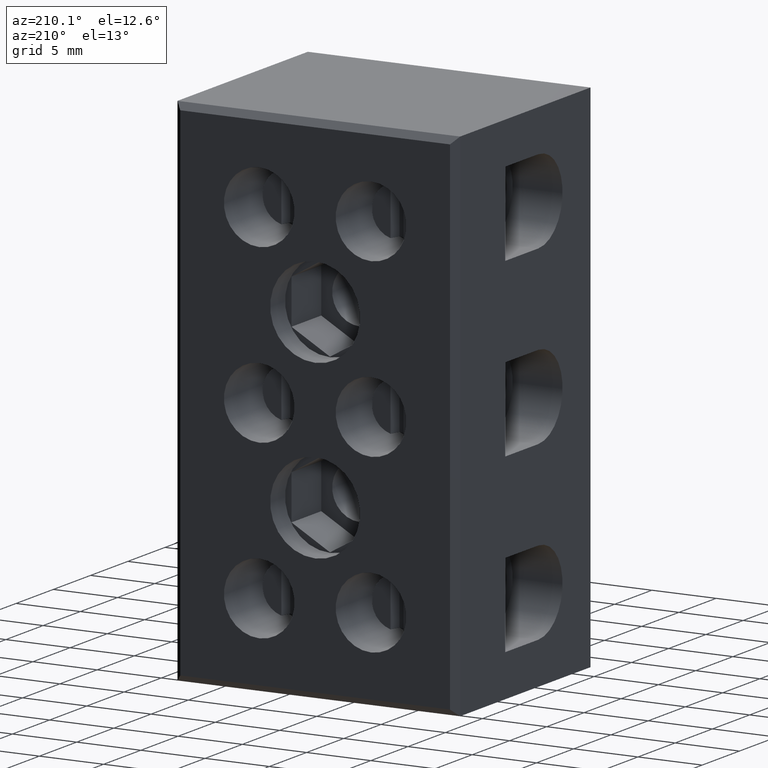
[diagram: clean part render]
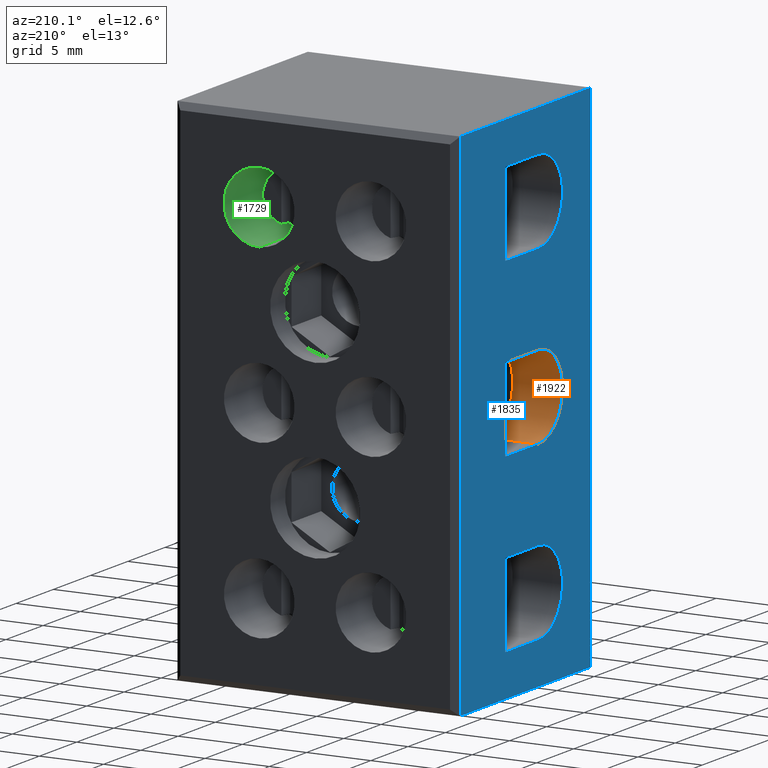
[diagram: same view with three faces highlighted in distinct colors, each labeled with its STEP entity id]
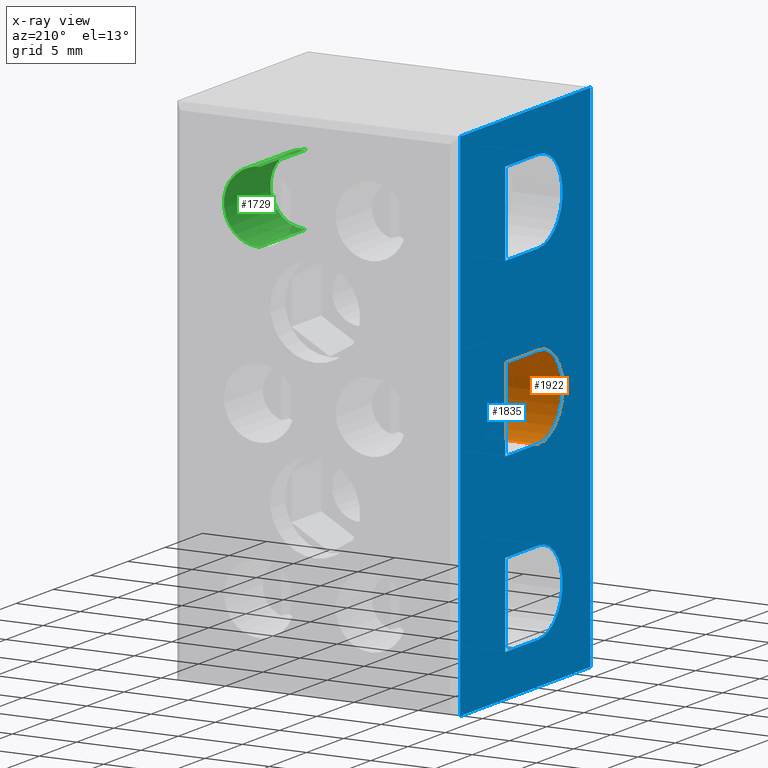
[diagram: x-ray of the same camera — body ghosted, the three highlighted faces saturated]
A machine part, auxiliary view with three faces highlighted in distinct colors.
The next image is the same camera in x-ray (body ghosted, the three faces saturated) — at least one of them is partly hidden behind the body in this view.
Their STEP definitions:

[orange] entity #1922 — the highlighted cylindrical surface (partial cylindrical patch) has radius 3.25 mm, axis along (1, 0, 0).
#279 = EDGE_LOOP ( 'NONE', ( #4390, #4465, #4494, #4484 ) ) ;
#424 = VERTEX_POINT ( 'NONE', #4583 ) ;
#452 = VERTEX_POINT ( 'NONE', #4600 ) ;
#487 = VERTEX_POINT ( 'NONE', #4673 ) ;
#495 = VERTEX_POINT ( 'NONE', #4621 ) ;
#1067 = EDGE_CURVE ( 'NONE', #487, #452, #1646, .T. ) ;
#1077 = EDGE_CURVE ( 'NONE', #424, #452, #3198, .T. ) ;
#1118 = EDGE_CURVE ( 'NONE', #495, #487, #3153, .T. ) ;
#1128 = EDGE_CURVE ( 'NONE', #495, #424, #1970, .T. ) ;
#1642 = CARTESIAN_POINT ( 'NONE',  ( -41.60000000000000900, 7.500000000000000000, -16.75000000000000000 ) ) ;
#1646 = LINE ( 'NONE', #1642, #3090 ) ;
#1684 = DIRECTION ( 'NONE',  ( 1.000000000000000000, 0.0000000000000000000, -0.0000000000000000000 ) ) ;
#1732 = CARTESIAN_POINT ( 'NONE',  ( 4.400000000000278400, 7.500000000000000000, -20.00000000000000000 ) ) ;
#1780 = DIRECTION ( 'NONE',  ( -1.000000000000000000, -0.0000000000000000000, -0.0000000000000000000 ) ) ;
#1789 = DIRECTION ( 'NONE',  ( 0.0000000000000000000, 0.0000000000000000000, -1.000000000000000000 ) ) ;
#1860 = CARTESIAN_POINT ( 'NONE',  ( 0.0000000000000000000, 7.500000000000000000, -20.00000000000000000 ) ) ;
#1861 = DIRECTION ( 'NONE',  ( -1.000000000000000000, -0.0000000000000000000, -0.0000000000000000000 ) ) ;
#1862 = DIRECTION ( 'NONE',  ( 0.0000000000000000000, 0.0000000000000000000, -1.000000000000000000 ) ) ;
#1922 = ADVANCED_FACE ( 'NONE', ( #6138 ), #6110, .F. ) ;
#1956 = DIRECTION ( 'NONE',  ( 1.000000000000000000, 0.0000000000000000000, 0.0000000000000000000 ) ) ;
#1970 = LINE ( 'NONE', #1984, #3220 ) ;
#1984 = CARTESIAN_POINT ( 'NONE',  ( -41.60000000000000900, 7.500000000000000000, -23.25000000000000000 ) ) ;
#3090 = VECTOR ( 'NONE', #1684, 1000.000000000000000 ) ;
#3153 = CIRCLE ( 'NONE', #3179, 3.249999999999999600 ) ;
#3179 = AXIS2_PLACEMENT_3D ( 'NONE', #1860, #1861, #1862 ) ;
#3188 = AXIS2_PLACEMENT_3D ( 'NONE', #1732, #1780, #1789 ) ;
#3198 = CIRCLE ( 'NONE', #3188, 3.249999999999999600 ) ;
#3220 = VECTOR ( 'NONE', #1956, 1000.000000000000000 ) ;
#4390 = ORIENTED_EDGE ( 'NONE', *, *, #1128, .F. ) ;
#4465 = ORIENTED_EDGE ( 'NONE', *, *, #1118, .T. ) ;
#4484 = ORIENTED_EDGE ( 'NONE', *, *, #1077, .F. ) ;
#4494 = ORIENTED_EDGE ( 'NONE', *, *, #1067, .T. ) ;
#4583 = CARTESIAN_POINT ( 'NONE',  ( 4.400000000000278400, 7.500000000000000000, -23.25000000000000000 ) ) ;
#4600 = CARTESIAN_POINT ( 'NONE',  ( 4.400000000000278400, 7.500000000000000000, -16.75000000000000000 ) ) ;
#4621 = CARTESIAN_POINT ( 'NONE',  ( 0.0000000000000000000, 7.500000000000000000, -23.25000000000000000 ) ) ;
#4673 = CARTESIAN_POINT ( 'NONE',  ( 0.0000000000000000000, 7.500000000000000000, -16.75000000000000000 ) ) ;
#6110 = CYLINDRICAL_SURFACE ( 'NONE', #7030, 3.249999999999999600 ) ;
#6123 = DIRECTION ( 'NONE',  ( 0.0000000000000000000, 0.0000000000000000000, -1.000000000000000000 ) ) ;
#6138 = FACE_OUTER_BOUND ( 'NONE', #279, .T. ) ;
#6139 = CARTESIAN_POINT ( 'NONE',  ( -41.60000000000000900, 7.500000000000000000, -20.00000000000000000 ) ) ;
#6140 = DIRECTION ( 'NONE',  ( 1.000000000000000000, 0.0000000000000000000, 0.0000000000000000000 ) ) ;
#7030 = AXIS2_PLACEMENT_3D ( 'NONE', #6139, #6140, #6123 ) ;

[blue] entity #1835 — the highlighted planar face has unit normal (1, -0, 0).
#277 = EDGE_LOOP ( 'NONE', ( #4497, #4443, #4532, #4493 ) ) ;
#312 = EDGE_LOOP ( 'NONE', ( #4496, #4516, #4538, #4522 ) ) ;
#348 = EDGE_LOOP ( 'NONE', ( #4483, #4520, #4513, #4515 ) ) ;
#349 = EDGE_LOOP ( 'NONE', ( #4539, #4474, #4551, #4471 ) ) ;
#468 = VERTEX_POINT ( 'NONE', #4654 ) ;
#469 = VERTEX_POINT ( 'NONE', #4635 ) ;
#474 = VERTEX_POINT ( 'NONE', #4667 ) ;
#475 = VERTEX_POINT ( 'NONE', #4616 ) ;
#487 = VERTEX_POINT ( 'NONE', #4673 ) ;
#493 = VERTEX_POINT ( 'NONE', #4663 ) ;
#495 = VERTEX_POINT ( 'NONE', #4621 ) ;
#502 = VERTEX_POINT ( 'NONE', #4637 ) ;
#503 = VERTEX_POINT ( 'NONE', #4627 ) ;
#504 = VERTEX_POINT ( 'NONE', #4628 ) ;
#505 = VERTEX_POINT ( 'NONE', #4651 ) ;
#511 = VERTEX_POINT ( 'NONE', #4630 ) ;
#512 = VERTEX_POINT ( 'NONE', #4652 ) ;
#515 = VERTEX_POINT ( 'NONE', #4636 ) ;
#517 = VERTEX_POINT ( 'NONE', #4632 ) ;
#520 = VERTEX_POINT ( 'NONE', #4658 ) ;
#1051 = EDGE_CURVE ( 'NONE', #475, #468, #3100, .T. ) ;
#1059 = EDGE_CURVE ( 'NONE', #474, #475, #1543, .T. ) ;
#1062 = EDGE_CURVE ( 'NONE', #520, #515, #1532, .T. ) ;
#1064 = EDGE_CURVE ( 'NONE', #515, #503, #1695, .T. ) ;
#1065 = EDGE_CURVE ( 'NONE', #468, #469, #1630, .T. ) ;
#1066 = EDGE_CURVE ( 'NONE', #469, #474, #1697, .T. ) ;
#1072 = EDGE_CURVE ( 'NONE', #512, #505, #1686, .T. ) ;
#1091 = EDGE_CURVE ( 'NONE', #502, #517, #1777, .T. ) ;
#1113 = EDGE_CURVE ( 'NONE', #502, #504, #1887, .T. ) ;
#1118 = EDGE_CURVE ( 'NONE', #495, #487, #3153, .T. ) ;
#1131 = EDGE_CURVE ( 'NONE', #493, #517, #1999, .T. ) ;
#1134 = EDGE_CURVE ( 'NONE', #504, #493, #1991, .T. ) ;
#1144 = EDGE_CURVE ( 'NONE', #503, #511, #2039, .T. ) ;
#1149 = EDGE_CURVE ( 'NONE', #511, #520, #2529, .T. ) ;
#1150 = EDGE_CURVE ( 'NONE', #487, #512, #2032, .T. ) ;
#1151 = EDGE_CURVE ( 'NONE', #505, #495, #2064, .T. ) ;
#1525 = CARTESIAN_POINT ( 'NONE',  ( 0.0000000000000000000, 18.50000000000000000, -36.75000000000000000 ) ) ;
#1532 = LINE ( 'NONE', #1694, #3121 ) ;
#1543 = LINE ( 'NONE', #1525, #3087 ) ;
#1552 = CARTESIAN_POINT ( 'NONE',  ( 0.0000000000000000000, 7.500000000000000000, -33.50000000000000000 ) ) ;
#1565 = DIRECTION ( 'NONE',  ( -1.000000000000000000, -0.0000000000000000000, -0.0000000000000000000 ) ) ;
#1569 = DIRECTION ( 'NONE',  ( -0.0000000000000000000, -1.000000000000000000, -0.0000000000000000000 ) ) ;
#1610 = DIRECTION ( 'NONE',  ( 0.0000000000000000000, 0.0000000000000000000, -1.000000000000000000 ) ) ;
#1619 = CARTESIAN_POINT ( 'NONE',  ( 0.0000000000000000000, 18.50000000000000000, -30.25000000000000000 ) ) ;
#1626 = DIRECTION ( 'NONE',  ( 0.0000000000000000000, 0.0000000000000000000, -1.000000000000000000 ) ) ;
#1628 = DIRECTION ( 'NONE',  ( 0.0000000000000000000, 0.0000000000000000000, -1.000000000000000000 ) ) ;
#1630 = LINE ( 'NONE', #1619, #3123 ) ;
#1655 = DIRECTION ( 'NONE',  ( 0.0000000000000000000, 0.0000000000000000000, -1.000000000000000000 ) ) ;
#1660 = CARTESIAN_POINT ( 'NONE',  ( 0.0000000000000000000, 11.95000000000000100, 0.0000000000000000000 ) ) ;
#1664 = DIRECTION ( 'NONE',  ( 0.0000000000000000000, 1.000000000000000000, 0.0000000000000000000 ) ) ;
#1665 = DIRECTION ( 'NONE',  ( 0.0000000000000000000, 1.000000000000000000, 0.0000000000000000000 ) ) ;
#1670 = CARTESIAN_POINT ( 'NONE',  ( 0.0000000000000000000, 11.95000000000000100, 0.0000000000000000000 ) ) ;
#1686 = LINE ( 'NONE', #1660, #3164 ) ;
#1694 = CARTESIAN_POINT ( 'NONE',  ( 0.0000000000000000000, 18.50000000000000000, -3.250000000000000400 ) ) ;
#1695 = LINE ( 'NONE', #1670, #3082 ) ;
#1697 = LINE ( 'NONE', #1702, #3086 ) ;
#1702 = CARTESIAN_POINT ( 'NONE',  ( 0.0000000000000000000, 11.95000000000000100, 0.0000000000000000000 ) ) ;
#1760 = CARTESIAN_POINT ( 'NONE',  ( 0.0000000000000000000, 18.50000000000000000, -40.00000000000000000 ) ) ;
#1767 = DIRECTION ( 'NONE',  ( 0.0000000000000000000, -1.000000000000000000, -0.0000000000000000000 ) ) ;
#1777 = LINE ( 'NONE', #1760, #3207 ) ;
#1835 = ADVANCED_FACE ( 'NONE', ( #5961, #5968, #5955, #5965 ), #5932, .F. ) ;
#1860 = CARTESIAN_POINT ( 'NONE',  ( 0.0000000000000000000, 7.500000000000000000, -20.00000000000000000 ) ) ;
#1861 = DIRECTION ( 'NONE',  ( -1.000000000000000000, -0.0000000000000000000, -0.0000000000000000000 ) ) ;
#1862 = DIRECTION ( 'NONE',  ( 0.0000000000000000000, 0.0000000000000000000, -1.000000000000000000 ) ) ;
#1873 = CARTESIAN_POINT ( 'NONE',  ( 0.0000000000000000000, 18.00000000000000400, 0.0000000000000000000 ) ) ;
#1885 = DIRECTION ( 'NONE',  ( -0.0000000000000000000, -0.0000000000000000000, 1.000000000000000000 ) ) ;
#1887 = LINE ( 'NONE', #1873, #3174 ) ;
#1947 = CARTESIAN_POINT ( 'NONE',  ( 0.0000000000000000000, 0.5000000000000004400, 0.0000000000000000000 ) ) ;
#1971 = CARTESIAN_POINT ( 'NONE',  ( 0.0000000000000000000, 18.50000000000000000, 0.0000000000000000000 ) ) ;
#1983 = DIRECTION ( 'NONE',  ( -0.0000000000000000000, -1.000000000000000000, -0.0000000000000000000 ) ) ;
#1989 = DIRECTION ( 'NONE',  ( -0.0000000000000000000, -0.0000000000000000000, -1.000000000000000000 ) ) ;
#1991 = LINE ( 'NONE', #1971, #3209 ) ;
#1999 = LINE ( 'NONE', #1947, #3223 ) ;
#2032 = LINE ( 'NONE', #2055, #2537 ) ;
#2034 = CARTESIAN_POINT ( 'NONE',  ( 0.0000000000000000000, 7.500000000000000000, -6.500000000000000900 ) ) ;
#2039 = LINE ( 'NONE', #2056, #2513 ) ;
#2043 = DIRECTION ( 'NONE',  ( -1.000000000000000000, -0.0000000000000000000, -0.0000000000000000000 ) ) ;
#2044 = DIRECTION ( 'NONE',  ( -0.0000000000000000000, -1.000000000000000000, -0.0000000000000000000 ) ) ;
#2055 = CARTESIAN_POINT ( 'NONE',  ( 0.0000000000000000000, 18.50000000000000000, -16.75000000000000000 ) ) ;
#2056 = CARTESIAN_POINT ( 'NONE',  ( 0.0000000000000000000, 18.50000000000000000, -9.749999999999998200 ) ) ;
#2060 = DIRECTION ( 'NONE',  ( 0.0000000000000000000, 1.000000000000000000, 0.0000000000000000000 ) ) ;
#2061 = DIRECTION ( 'NONE',  ( 0.0000000000000000000, 0.0000000000000000000, -1.000000000000000000 ) ) ;
#2064 = LINE ( 'NONE', #2072, #2483 ) ;
#2072 = CARTESIAN_POINT ( 'NONE',  ( 0.0000000000000000000, 18.50000000000000000, -23.25000000000000000 ) ) ;
#2076 = DIRECTION ( 'NONE',  ( -0.0000000000000000000, -1.000000000000000000, -0.0000000000000000000 ) ) ;
#2483 = VECTOR ( 'NONE', #2076, 1000.000000000000000 ) ;
#2506 = AXIS2_PLACEMENT_3D ( 'NONE', #2034, #2043, #2061 ) ;
#2513 = VECTOR ( 'NONE', #2044, 1000.000000000000000 ) ;
#2529 = CIRCLE ( 'NONE', #2506, 3.250000000000001300 ) ;
#2537 = VECTOR ( 'NONE', #2060, 1000.000000000000000 ) ;
#3082 = VECTOR ( 'NONE', #1628, 1000.000000000000000 ) ;
#3086 = VECTOR ( 'NONE', #1626, 1000.000000000000000 ) ;
#3087 = VECTOR ( 'NONE', #1569, 1000.000000000000000 ) ;
#3100 = CIRCLE ( 'NONE', #3109, 3.250000000000002700 ) ;
#3109 = AXIS2_PLACEMENT_3D ( 'NONE', #1552, #1565, #1610 ) ;
#3121 = VECTOR ( 'NONE', #1665, 1000.000000000000000 ) ;
#3123 = VECTOR ( 'NONE', #1664, 1000.000000000000000 ) ;
#3153 = CIRCLE ( 'NONE', #3179, 3.249999999999999600 ) ;
#3164 = VECTOR ( 'NONE', #1655, 1000.000000000000000 ) ;
#3174 = VECTOR ( 'NONE', #1885, 1000.000000000000000 ) ;
#3179 = AXIS2_PLACEMENT_3D ( 'NONE', #1860, #1861, #1862 ) ;
#3207 = VECTOR ( 'NONE', #1767, 1000.000000000000000 ) ;
#3209 = VECTOR ( 'NONE', #1983, 1000.000000000000000 ) ;
#3223 = VECTOR ( 'NONE', #1989, 1000.000000000000000 ) ;
#4443 = ORIENTED_EDGE ( 'NONE', *, *, #1059, .F. ) ;
#4471 = ORIENTED_EDGE ( 'NONE', *, *, #1150, .F. ) ;
#4474 = ORIENTED_EDGE ( 'NONE', *, *, #1151, .F. ) ;
#4483 = ORIENTED_EDGE ( 'NONE', *, *, #1149, .F. ) ;
#4493 = ORIENTED_EDGE ( 'NONE', *, *, #1065, .F. ) ;
#4496 = ORIENTED_EDGE ( 'NONE', *, *, #1131, .F. ) ;
#4497 = ORIENTED_EDGE ( 'NONE', *, *, #1051, .F. ) ;
#4513 = ORIENTED_EDGE ( 'NONE', *, *, #1064, .F. ) ;
#4515 = ORIENTED_EDGE ( 'NONE', *, *, #1062, .F. ) ;
#4516 = ORIENTED_EDGE ( 'NONE', *, *, #1134, .F. ) ;
#4520 = ORIENTED_EDGE ( 'NONE', *, *, #1144, .F. ) ;
#4522 = ORIENTED_EDGE ( 'NONE', *, *, #1091, .T. ) ;
#4532 = ORIENTED_EDGE ( 'NONE', *, *, #1066, .F. ) ;
#4538 = ORIENTED_EDGE ( 'NONE', *, *, #1113, .F. ) ;
#4539 = ORIENTED_EDGE ( 'NONE', *, *, #1118, .F. ) ;
#4551 = ORIENTED_EDGE ( 'NONE', *, *, #1072, .F. ) ;
#4616 = CARTESIAN_POINT ( 'NONE',  ( 0.0000000000000000000, 7.500000000000000000, -36.75000000000000700 ) ) ;
#4621 = CARTESIAN_POINT ( 'NONE',  ( 0.0000000000000000000, 7.500000000000000000, -23.25000000000000000 ) ) ;
#4627 = CARTESIAN_POINT ( 'NONE',  ( 0.0000000000000000000, 11.95000000000000100, -9.749999999999998200 ) ) ;
#4628 = CARTESIAN_POINT ( 'NONE',  ( 9.080193194566099600E-016, 18.00000000000000400, 1.070649645329435600E-015 ) ) ;
#4630 = CARTESIAN_POINT ( 'NONE',  ( 0.0000000000000000000, 7.500000000000000000, -9.750000000000000000 ) ) ;
#4632 = CARTESIAN_POINT ( 'NONE',  ( -6.969471907443042000E-016, 0.5000000000000012200, -40.00000000000000700 ) ) ;
#4635 = CARTESIAN_POINT ( 'NONE',  ( 0.0000000000000000000, 11.95000000000000100, -30.25000000000000000 ) ) ;
#4636 = CARTESIAN_POINT ( 'NONE',  ( 0.0000000000000000000, 11.95000000000000100, -3.250000000000000900 ) ) ;
#4637 = CARTESIAN_POINT ( 'NONE',  ( 1.273937552670467700E-015, 18.00000000000000400, -40.00000000000000000 ) ) ;
#4651 = CARTESIAN_POINT ( 'NONE',  ( 0.0000000000000000000, 11.95000000000000100, -23.25000000000000400 ) ) ;
#4652 = CARTESIAN_POINT ( 'NONE',  ( 0.0000000000000000000, 11.95000000000000100, -16.75000000000000000 ) ) ;
#4654 = CARTESIAN_POINT ( 'NONE',  ( 0.0000000000000000000, 7.500000000000000000, -30.25000000000000000 ) ) ;
#4658 = CARTESIAN_POINT ( 'NONE',  ( 0.0000000000000000000, 7.500000000000000000, -3.250000000000000400 ) ) ;
#4663 = CARTESIAN_POINT ( 'NONE',  ( 2.710505431213761100E-017, 0.5000000000000004400, -5.421010862427523400E-017 ) ) ;
#4667 = CARTESIAN_POINT ( 'NONE',  ( 0.0000000000000000000, 11.95000000000000100, -36.75000000000000000 ) ) ;
#4673 = CARTESIAN_POINT ( 'NONE',  ( 0.0000000000000000000, 7.500000000000000000, -16.75000000000000000 ) ) ;
#5932 = PLANE ( 'NONE',  #6972 ) ;
#5951 = DIRECTION ( 'NONE',  ( 1.000000000000000000, -0.0000000000000000000, 0.0000000000000000000 ) ) ;
#5955 = FACE_BOUND ( 'NONE', #349, .T. ) ;
#5957 = DIRECTION ( 'NONE',  ( 0.0000000000000000000, 0.0000000000000000000, -1.000000000000000000 ) ) ;
#5961 = FACE_OUTER_BOUND ( 'NONE', #312, .T. ) ;
#5962 = CARTESIAN_POINT ( 'NONE',  ( 0.0000000000000000000, 18.50000000000000000, 0.0000000000000000000 ) ) ;
#5965 = FACE_BOUND ( 'NONE', #277, .T. ) ;
#5968 = FACE_BOUND ( 'NONE', #348, .T. ) ;
#6972 = AXIS2_PLACEMENT_3D ( 'NONE', #5962, #5951, #5957 ) ;

[green] entity #1729 — the highlighted cylindrical surface (partial cylindrical patch) has radius 2.75 mm, axis along (0, 1, 0).
#292 = EDGE_LOOP ( 'NONE', ( #4241, #4210, #4311, #4255 ) ) ;
#667 = VERTEX_POINT ( 'NONE', #4815 ) ;
#671 = VERTEX_POINT ( 'NONE', #4844 ) ;
#673 = VERTEX_POINT ( 'NONE', #4814 ) ;
#709 = VERTEX_POINT ( 'NONE', #4823 ) ;
#942 = EDGE_CURVE ( 'NONE', #673, #671, #3005, .T. ) ;
#949 = EDGE_CURVE ( 'NONE', #667, #709, #2992, .T. ) ;
#1444 = EDGE_CURVE ( 'NONE', #671, #709, #7519, .T. ) ;
#1514 = EDGE_CURVE ( 'NONE', #673, #667, #7626, .T. ) ;
#1729 = ADVANCED_FACE ( 'NONE', ( #5757 ), #5727, .F. ) ;
#2292 = DIRECTION ( 'NONE',  ( 0.0000000000000000000, 1.000000000000000000, 0.0000000000000000000 ) ) ;
#2295 = CARTESIAN_POINT ( 'NONE',  ( 15.35000000000027700, 18.50000000000000000, -6.500000000000003600 ) ) ;
#2297 = DIRECTION ( 'NONE',  ( 0.0000000000000000000, 1.000000000000000000, 0.0000000000000000000 ) ) ;
#2298 = DIRECTION ( 'NONE',  ( 0.0000000000000000000, 0.0000000000000000000, 1.000000000000000000 ) ) ;
#2302 = DIRECTION ( 'NONE',  ( 0.0000000000000000000, 0.0000000000000000000, 1.000000000000000000 ) ) ;
#2322 = CARTESIAN_POINT ( 'NONE',  ( 15.35000000000027700, 12.26917103431822100, -6.500000000000003600 ) ) ;
#2976 = AXIS2_PLACEMENT_3D ( 'NONE', #2322, #2297, #2298 ) ;
#2992 = CIRCLE ( 'NONE', #3011, 2.750000000000002700 ) ;
#3005 = CIRCLE ( 'NONE', #2976, 2.750000000000002700 ) ;
#3011 = AXIS2_PLACEMENT_3D ( 'NONE', #2295, #2292, #2302 ) ;
#4210 = ORIENTED_EDGE ( 'NONE', *, *, #942, .F. ) ;
#4241 = ORIENTED_EDGE ( 'NONE', *, *, #1444, .F. ) ;
#4255 = ORIENTED_EDGE ( 'NONE', *, *, #949, .T. ) ;
#4311 = ORIENTED_EDGE ( 'NONE', *, *, #1514, .T. ) ;
#4814 = CARTESIAN_POINT ( 'NONE',  ( 15.35000000000027700, 12.26917103431822100, -3.750000000000000900 ) ) ;
#4815 = CARTESIAN_POINT ( 'NONE',  ( 15.35000000000027700, 18.50000000000000000, -3.750000000000000900 ) ) ;
#4823 = CARTESIAN_POINT ( 'NONE',  ( 15.35000000000027700, 18.50000000000000000, -9.250000000000005300 ) ) ;
#4844 = CARTESIAN_POINT ( 'NONE',  ( 15.35000000000027700, 12.26917103431822100, -9.250000000000005300 ) ) ;
#5727 = CYLINDRICAL_SURFACE ( 'NONE', #6945, 2.750000000000002700 ) ;
#5747 = DIRECTION ( 'NONE',  ( 0.0000000000000000000, 0.0000000000000000000, 1.000000000000000000 ) ) ;
#5757 = FACE_OUTER_BOUND ( 'NONE', #292, .T. ) ;
#5761 = CARTESIAN_POINT ( 'NONE',  ( 15.35000000000027700, 11.50000000000000000, -6.500000000000003600 ) ) ;
#5770 = DIRECTION ( 'NONE',  ( 0.0000000000000000000, 1.000000000000000000, 0.0000000000000000000 ) ) ;
#6712 = VECTOR ( 'NONE', #7653, 1000.000000000000000 ) ;
#6945 = AXIS2_PLACEMENT_3D ( 'NONE', #5761, #5770, #5747 ) ;
#7519 = LINE ( 'NONE', #7521, #7891 ) ;
#7520 = DIRECTION ( 'NONE',  ( 0.0000000000000000000, 1.000000000000000000, 0.0000000000000000000 ) ) ;
#7521 = CARTESIAN_POINT ( 'NONE',  ( 15.35000000000027700, 11.50000000000000000, -9.250000000000005300 ) ) ;
#7626 = LINE ( 'NONE', #7627, #6712 ) ;
#7627 = CARTESIAN_POINT ( 'NONE',  ( 15.35000000000027700, 11.50000000000000000, -3.750000000000000900 ) ) ;
#7653 = DIRECTION ( 'NONE',  ( 0.0000000000000000000, 1.000000000000000000, 0.0000000000000000000 ) ) ;
#7891 = VECTOR ( 'NONE', #7520, 1000.000000000000000 ) ;